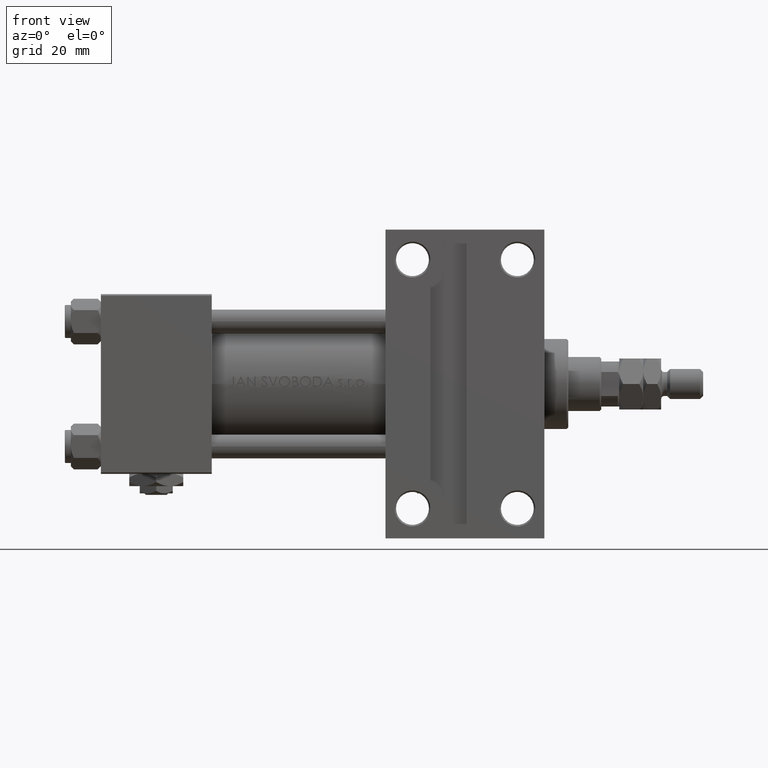
[diagram: clean part render]
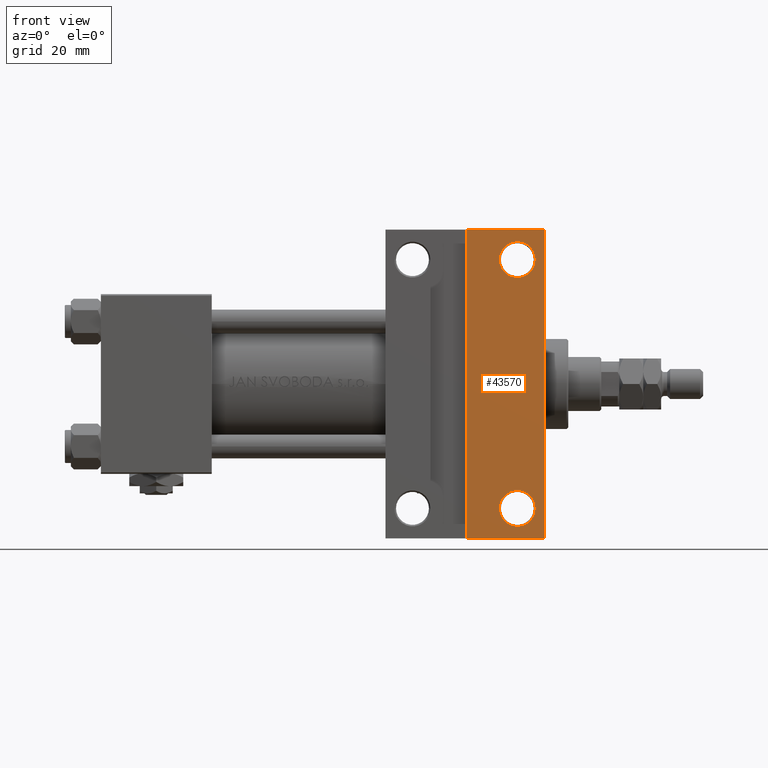
[diagram: same view with one face highlighted and labeled with its STEP entity id]
A machine part, front view. The second image highlights one B-rep face of the part: STEP entity #43570.
In plain terms, the highlighted planar face has unit normal (0, -1, -0).
Its self-contained STEP definition (entity closure, byte-faithful):
#555 = CARTESIAN_POINT ( 'NONE',  ( 144.9994999999999266, 41.50000000000000000, -29.99999999999999289 ) ) ;
#2293 = VERTEX_POINT ( 'NONE', #29414 ) ;
#3508 = VECTOR ( 'NONE', #29091, 1000.000000000000000 ) ;
#3527 = ORIENTED_EDGE ( 'NONE', *, *, #18409, .T. ) ;
#3662 = DIRECTION ( 'NONE',  ( 0.000000000000000000, 1.000000000000000000, 0.000000000000000000 ) ) ;
#4274 = EDGE_LOOP ( 'NONE', ( #49433, #36440 ) ) ;
#4340 = CARTESIAN_POINT ( 'NONE',  ( 95.00000000000000000, 51.50000000000000711, -29.99999999999999645 ) ) ;
#4650 = CARTESIAN_POINT ( 'NONE',  ( 121.9999999999999858, -51.49999999999999289, -29.99999999999999645 ) ) ;
#5955 = AXIS2_PLACEMENT_3D ( 'NONE', #14385, #22065, #30530 ) ;
#6460 = DIRECTION ( 'NONE',  ( -0.000000000000000000, -1.156482317317871478E-16, 1.000000000000000000 ) ) ;
#6895 = DIRECTION ( 'NONE',  ( -0.000000000000000000, -1.156482317317871478E-16, 1.000000000000000000 ) ) ;
#7675 = EDGE_CURVE ( 'NONE', #39819, #19990, #28751, .T. ) ;
#7888 = DIRECTION ( 'NONE',  ( -1.000000000000000000, -0.000000000000000000, -0.000000000000000000 ) ) ;
#8006 = VECTOR ( 'NONE', #8570, 1000.000000000000000 ) ;
#8060 = DIRECTION ( 'NONE',  ( 0.000000000000000000, 1.156482317317871478E-16, -1.000000000000000000 ) ) ;
#8393 = EDGE_CURVE ( 'NONE', #2293, #42406, #37309, .T. ) ;
#8570 = DIRECTION ( 'NONE',  ( 1.000000000000000000, -2.618450529776313247E-16, 0.000000000000000000 ) ) ;
#9218 = VERTEX_POINT ( 'NONE', #39681 ) ;
#10943 = DIRECTION ( 'NONE',  ( 0.000000000000000000, 1.000000000000000000, 0.000000000000000000 ) ) ;
#11342 = CARTESIAN_POINT ( 'NONE',  ( 94.99999999999998579, -51.50000000000000711, -29.99999999999999645 ) ) ;
#11519 = DIRECTION ( 'NONE',  ( 0.000000000000000000, 1.000000000000000000, 1.156482317317871478E-16 ) ) ;
#11589 = ORIENTED_EDGE ( 'NONE', *, *, #28491, .T. ) ;
#13180 = AXIS2_PLACEMENT_3D ( 'NONE', #43675, #6895, #31219 ) ;
#13502 = EDGE_CURVE ( 'NONE', #52274, #9218, #34408, .T. ) ;
#13668 = EDGE_CURVE ( 'NONE', #9218, #52274, #48770, .T. ) ;
#14385 = CARTESIAN_POINT ( 'NONE',  ( 138.9999999999999432, -41.50000000000000000, -30.00000000000000000 ) ) ;
#16000 = FACE_BOUND ( 'NONE', #4274, .T. ) ;
#17280 = ORIENTED_EDGE ( 'NONE', *, *, #8393, .F. ) ;
#17513 = EDGE_LOOP ( 'NONE', ( #17280, #3527, #11589, #46585 ) ) ;
#18409 = EDGE_CURVE ( 'NONE', #2293, #48983, #48545, .T. ) ;
#19723 = FACE_BOUND ( 'NONE', #32880, .T. ) ;
#19990 = VERTEX_POINT ( 'NONE', #24331 ) ;
#20196 = EDGE_CURVE ( 'NONE', #42227, #42406, #47599, .T. ) ;
#21407 = DIRECTION ( 'NONE',  ( -0.000000000000000000, -1.000000000000000000, -0.000000000000000000 ) ) ;
#22065 = DIRECTION ( 'NONE',  ( -0.000000000000000000, -1.156482317317871478E-16, 1.000000000000000000 ) ) ;
#22422 = CARTESIAN_POINT ( 'NONE',  ( 148.0000000000000000, -51.50000000000000711, -29.99999999999999645 ) ) ;
#22587 = CARTESIAN_POINT ( 'NONE',  ( 138.9999999999999432, 41.50000000000000000, -29.99999999999999289 ) ) ;
#22589 = AXIS2_PLACEMENT_3D ( 'NONE', #22587, #6460, #10943 ) ;
#24331 = CARTESIAN_POINT ( 'NONE',  ( 133.0004999999999598, -41.50000000000000000, -30.00000000000000000 ) ) ;
#24894 = VECTOR ( 'NONE', #7888, 1000.000000000000000 ) ;
#26681 = CARTESIAN_POINT ( 'NONE',  ( 138.9999999999999432, 41.50000000000000000, -29.99999999999999289 ) ) ;
#27372 = PLANE ( 'NONE',  #52120 ) ;
#28320 = CARTESIAN_POINT ( 'NONE',  ( 148.0000000000000000, 30.00000000000000000, -29.99999999999999289 ) ) ;
#28491 = EDGE_CURVE ( 'NONE', #48983, #42227, #45512, .T. ) ;
#28751 = CIRCLE ( 'NONE', #5955, 5.999499999999990507 ) ;
#29091 = DIRECTION ( 'NONE',  ( 0.000000000000000000, -1.000000000000000000, -1.156482317317871478E-16 ) ) ;
#29414 = CARTESIAN_POINT ( 'NONE',  ( 121.9999999999999858, 51.50000000000000711, -29.99999999999999645 ) ) ;
#30133 = CARTESIAN_POINT ( 'NONE',  ( 121.9999999999999858, -51.49999999999999289, -29.99999999999999645 ) ) ;
#30530 = DIRECTION ( 'NONE',  ( 0.000000000000000000, 1.000000000000000000, 0.000000000000000000 ) ) ;
#30754 = CARTESIAN_POINT ( 'NONE',  ( 148.0000000000000000, 51.49999999999999289, -29.99999999999999645 ) ) ;
#31219 = DIRECTION ( 'NONE',  ( 0.000000000000000000, 1.000000000000000000, 0.000000000000000000 ) ) ;
#32880 = EDGE_LOOP ( 'NONE', ( #37023, #42977 ) ) ;
#34408 = CIRCLE ( 'NONE', #47117, 5.999499999999962974 ) ;
#35740 = CARTESIAN_POINT ( 'NONE',  ( 144.9994999999999550, -41.50000000000000000, -30.00000000000000000 ) ) ;
#36126 = FACE_OUTER_BOUND ( 'NONE', #17513, .T. ) ;
#36440 = ORIENTED_EDGE ( 'NONE', *, *, #7675, .T. ) ;
#37023 = ORIENTED_EDGE ( 'NONE', *, *, #13668, .T. ) ;
#37309 = LINE ( 'NONE', #30133, #42342 ) ;
#39681 = CARTESIAN_POINT ( 'NONE',  ( 133.0004999999999882, 41.50000000000000000, -29.99999999999999289 ) ) ;
#39819 = VERTEX_POINT ( 'NONE', #35740 ) ;
#39929 = DIRECTION ( 'NONE',  ( -0.000000000000000000, -1.156482317317871478E-16, 1.000000000000000000 ) ) ;
#42227 = VERTEX_POINT ( 'NONE', #22422 ) ;
#42342 = VECTOR ( 'NONE', #21407, 1000.000000000000000 ) ;
#42406 = VERTEX_POINT ( 'NONE', #4650 ) ;
#42762 = EDGE_CURVE ( 'NONE', #19990, #39819, #51198, .T. ) ;
#42977 = ORIENTED_EDGE ( 'NONE', *, *, #13502, .T. ) ;
#43570 = ADVANCED_FACE ( 'NONE', ( #36126, #16000, #19723 ), #27372, .T. ) ;
#43675 = CARTESIAN_POINT ( 'NONE',  ( 138.9999999999999432, -41.50000000000000000, -30.00000000000000000 ) ) ;
#43805 = CARTESIAN_POINT ( 'NONE',  ( 148.0000000000000000, 30.00000000000000000, -29.99999999999999289 ) ) ;
#45512 = LINE ( 'NONE', #28320, #3508 ) ;
#46585 = ORIENTED_EDGE ( 'NONE', *, *, #20196, .T. ) ;
#47117 = AXIS2_PLACEMENT_3D ( 'NONE', #26681, #39929, #3662 ) ;
#47599 = LINE ( 'NONE', #11342, #24894 ) ;
#48545 = LINE ( 'NONE', #4340, #8006 ) ;
#48770 = CIRCLE ( 'NONE', #22589, 5.999499999999962974 ) ;
#48983 = VERTEX_POINT ( 'NONE', #30754 ) ;
#49433 = ORIENTED_EDGE ( 'NONE', *, *, #42762, .T. ) ;
#51198 = CIRCLE ( 'NONE', #13180, 5.999499999999990507 ) ;
#52120 = AXIS2_PLACEMENT_3D ( 'NONE', #43805, #8060, #11519 ) ;
#52274 = VERTEX_POINT ( 'NONE', #555 ) ;